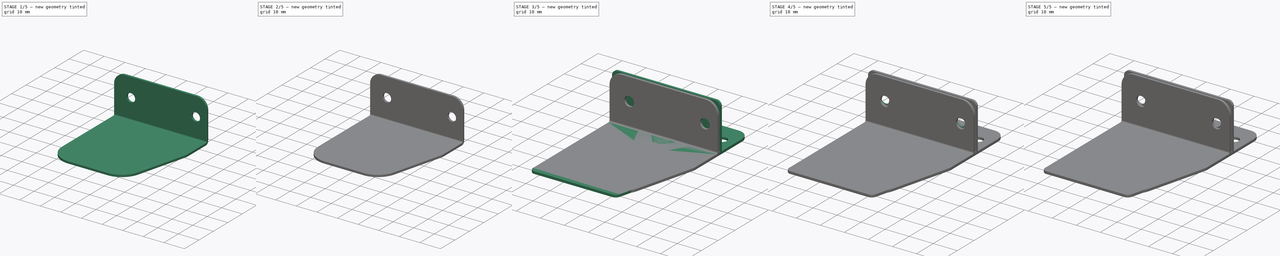
[diagram: build sequence overview — one tinted view per stage of 5, left to right]
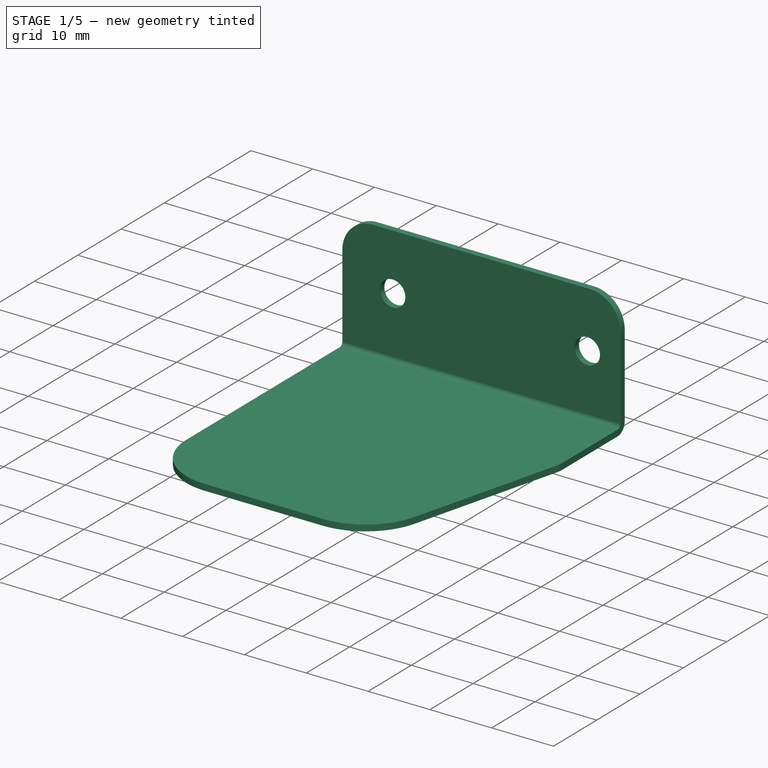
[diagram: stage 1 of 5 — iso view after this stage's code; geometry added in this stage tinted green]
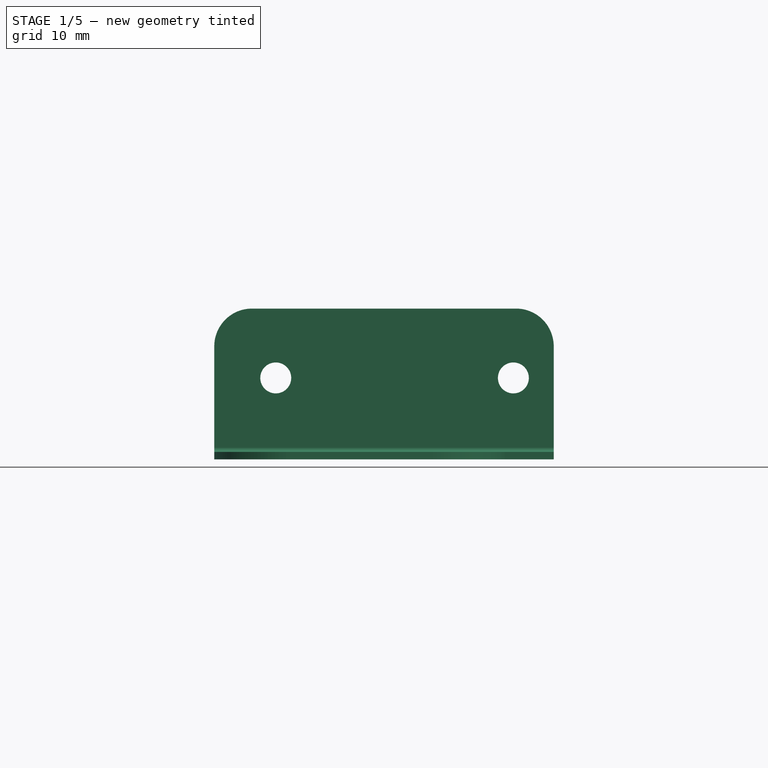
[diagram: stage 1 of 5 — front view after this stage's code; geometry added in this stage tinted green]
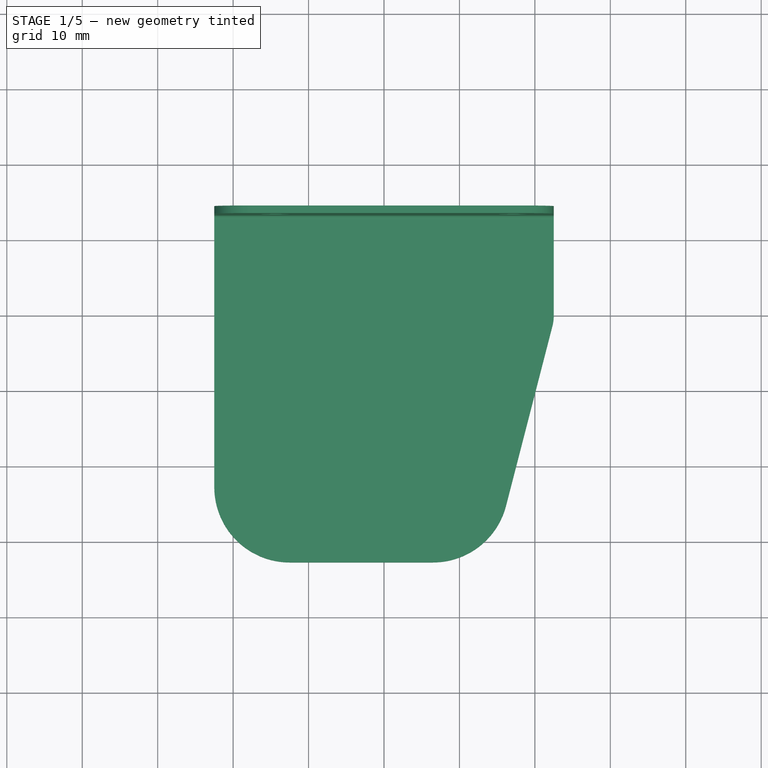
[diagram: stage 1 of 5 — top view after this stage's code; geometry added in this stage tinted green]
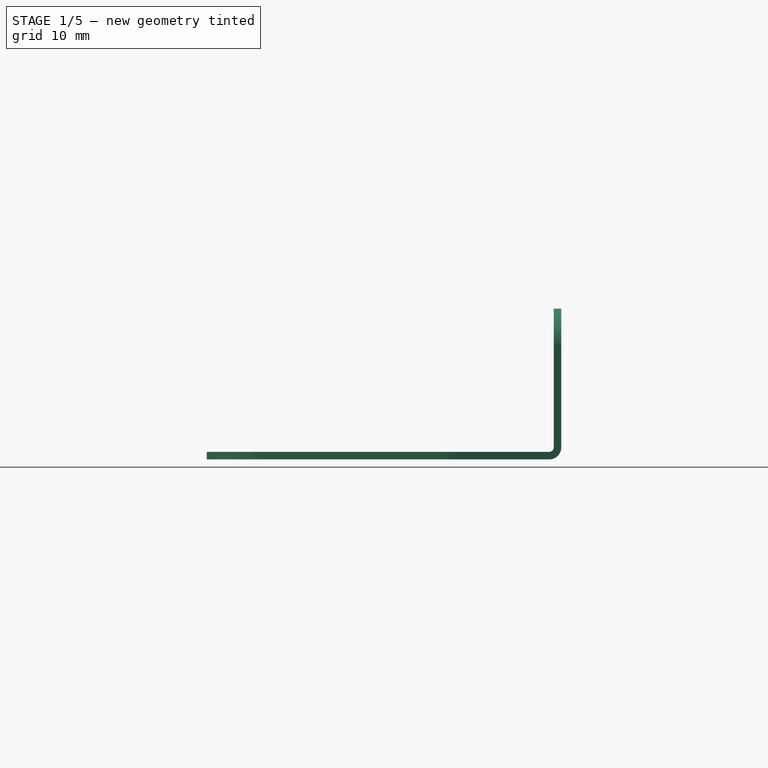
[diagram: stage 1 of 5 — right view after this stage's code; geometry added in this stage tinted green]
FCSTD DOCUMENT  (FreeCAD 1.0R39285 (Git))
Label: TrailingEdgeBracket
License: All rights reserved
LicenseURL: https://en.wikipedia.org/wiki/All_rights_reserved
objects: Sketcher::SketchObject×12, PartDesign::Pocket×9, PartDesign::Fillet×7, PartDesign::FeaturePython×5, PartDesign::Chamfer×5, PartDesign::Body×5, Part::FeaturePython×1
note: 103 computed .brp shape members not serialized (recipe doc carries the construction recipe); baked Part::Feature solids carry a one-line shape summary decoded from their .brp

FEATURE [Sketcher::SketchObject] Unfold_Sketch
  ArcFitTolerance = 1e-06
  FullyConstrained = false
  MakeInternals = false
  sketch-geometry (14):
    g0: LineSegment StartX=40 StartY=65.445 StartZ=0 EndX=5 EndY=65.445 EndZ=0
    g1: ArcOfCircle CenterX=5 CenterY=60.445 CenterZ=0 NormalX=0 NormalY=0 NormalZ=1 AngleXU=1.4e-15 Radius=5 StartAngle=0 EndAngle=1.5708
    g2: LineSegment StartX=2.2e-15 StartY=60.445 StartZ=0 EndX=0 EndY=47.055 EndZ=0
    g3: LineSegment StartX=0 StartY=47.055 StartZ=0 EndX=0 EndY=45.39 EndZ=0
    g4: LineSegment StartX=0 StartY=45.39 StartZ=0 EndX=0 EndY=10 EndZ=0
    g5: ArcOfCircle CenterX=10 CenterY=10 CenterZ=0 NormalX=0 NormalY=0 NormalZ=1 AngleXU=1.5708 Radius=10 StartAngle=0 EndAngle=1.5708
    g6: LineSegment StartX=10 StartY=0 StartZ=0 EndX=28.995 EndY=-1.8e-15 EndZ=0
    g7: ArcOfCircle CenterX=28.995 CenterY=10 CenterZ=0 NormalX=0 NormalY=0 NormalZ=1 AngleXU=-3.14159 Radius=10 StartAngle=0 EndAngle=1.31824
    g8: LineSegment StartX=38.6777 StartY=7.50122 StartZ=0 EndX=44.8414 EndY=31.3854 EndZ=0
    g9: ArcOfCircle CenterX=40 CenterY=32.6348 CenterZ=0 NormalX=0 NormalY=0 NormalZ=1 AngleXU=-1.82335 Radius=5 StartAngle=0 EndAngle=0.252554
    g10: LineSegment StartX=45 StartY=32.6348 StartZ=0 EndX=45 EndY=45.39 EndZ=0
    g11: LineSegment StartX=45 StartY=45.39 StartZ=0 EndX=45 EndY=47.055 EndZ=0
    g12: LineSegment StartX=45 StartY=47.055 StartZ=0 EndX=45 EndY=60.445 EndZ=0
    g13: ArcOfCircle CenterX=40 CenterY=60.445 CenterZ=0 NormalX=0 NormalY=0 NormalZ=1 AngleXU=-1.5708 Radius=5 StartAngle=0 EndAngle=1.5708
FEATURE [Sketcher::SketchObject] Unfold_Sketch_Bends
  ArcFitTolerance = 1e-06
  FullyConstrained = false
  MakeInternals = false
  sketch-geometry (1):
    g0: LineSegment StartX=45 StartY=46.2225 StartZ=0 EndX=0 EndY=46.2225 EndZ=0
FEATURE [Sketcher::SketchObject] Unfold_Sketch_Holes
  ArcFitTolerance = 1e-06
  FullyConstrained = false
  MakeInternals = false
  sketch-geometry (6):
    g0: Circle CenterX=22.5 CenterY=30.39 CenterZ=0 NormalX=0 NormalY=0 NormalZ=1 AngleXU=0 Radius=10.75
    g1: Circle CenterX=18.9254 CenterY=9.25009 CenterZ=0 NormalX=0 NormalY=0 NormalZ=1 AngleXU=0 Radius=5.555
    g2: Circle CenterX=33.1377 CenterY=14.0471 CenterZ=0 NormalX=0 NormalY=0 NormalZ=1 AngleXU=0 Radius=4.76
    g3: Circle CenterX=7.08044 CenterY=18.4532 CenterZ=0 NormalX=0 NormalY=0 NormalZ=1 AngleXU=0 Radius=4.76
    g4: Circle CenterX=8.15 CenterY=56.25 CenterZ=0 NormalX=0 NormalY=0 NormalZ=1 AngleXU=0 Radius=2.05
    g5: Circle CenterX=39.65 CenterY=56.25 CenterZ=0 NormalX=0 NormalY=0 NormalZ=1 AngleXU=0 Radius=2.05
FEATURE [PartDesign::FeaturePython] BaseShape004  # WARN: FeaturePython — macro-defined, semantics opaque (R4)
  Suppressed = false
  fillGaps = true
  flangeWidth = 20
  height = 20
  length = 45
  originLoc = 4
  radius = 0.61
  shapeType = 1
  thickness = 1
  width = 47
  expr: radius = 0.61
FEATURE [PartDesign::Chamfer] Chamfer004
  Angle = 45
  Base = -> BaseShape004 [Edge6]
  BaseFeature = -> BaseShape004
  ChamferType = 1
  FlipDirection = false
  Refine = true
  Size = 8.25806
  Size2 = 32
  SupportTransform = false
  Suppressed = false
  UseAllEdges = false
  expr: Size = Size2 / 15.5 * 4
  expr: Size2 = BaseShape004.width - 15 mm
FEATURE [PartDesign::Fillet] Fillet005
  Base = -> Chamfer004 [Edge26,Edge27,Edge9]
  BaseFeature = -> Chamfer004
  Radius = 5
  Refine = true
  SupportTransform = false
  Suppressed = false
  UseAllEdges = false
FEATURE [PartDesign::Fillet] Fillet006
  Base = -> Fillet005 [Edge25,Edge18]
  BaseFeature = -> Fillet005
  Radius = 10
  Refine = true
  SupportTransform = false
  Suppressed = false
  UseAllEdges = false
FEATURE [Sketcher::SketchObject] Sketch008
  ArcFitTolerance = 1e-06
  AttachmentSupport = -> [BaseShape004]
  ExternalGeometry = -> [BaseShape004]
  FullyConstrained = true
  MakeInternals = false
  MapMode = 5
  Placement = pos=(0,23.305,-2.6e-15) rot=(1,0,0;1.5708rad)
  sketch-geometry (6):
    g0: Circle CenterX=-14.35 CenterY=10.805 CenterZ=0 NormalX=0 NormalY=0 NormalZ=1 AngleXU=0 Radius=2.05
    g1: Circle CenterX=17.15 CenterY=10.805 CenterZ=0 NormalX=0 NormalY=0 NormalZ=1 AngleXU=0 Radius=2.05
    g2: GeomPoint [constr] X=-22.5 Y=10.805 Z=0
    g3: GeomPoint [constr] X=22.5 Y=10.805 Z=0
    g4: LineSegment [constr] StartX=-22.5 StartY=10.805 StartZ=0 EndX=22.5 EndY=10.805 EndZ=0
    g5: GeomPoint [constr] X=1.4 Y=10.805 Z=0
  constraints (11):
    c: DistanceX(g0,g1) = 31.5  'HoleSpacing'
    c: Diameter(g0) = 4.1
    c: Diameter(g1) = 4.1
    c: Symmetric(g-3,g-3,g2)
    c: Symmetric(g-4,g-4,g3)
    c: Coincident(g4,g2)
    c: Coincident(g4,g3)
    c: PointOnObject(g0,g4)
    c: PointOnObject(g5,g4)
    c: DistanceX(g-1,g5) = 1.4
    c: Symmetric(g0,g1,g5)
FEATURE [Sketcher::SketchObject] Sketch009
  ArcFitTolerance = 1e-06
  AttachmentSupport = -> [BaseShape004]
  ExternalGeometry = -> [BaseShape004]
  FullyConstrained = false
  MakeInternals = false
  MapMode = 5
  Placement = pos=(0,0,1) rot=(0,0,1;0rad)
  expr: Constraints[31] = Chamfer004.Size2
  expr: Constraints[32] = Chamfer004.Size
  sketch-geometry (24):
    g0: Circle CenterX=-1.7e-15 CenterY=7.695 CenterZ=0 NormalX=0 NormalY=0 NormalZ=1 AngleXU=0 Radius=10.75
    g1: Circle [constr] CenterX=-1.7e-15 CenterY=7.695 CenterZ=0 NormalX=0 NormalY=0 NormalZ=1 AngleXU=0 Radius=13.5
    g2: LineSegment [constr] StartX=-1.7e-15 StartY=7.695 StartZ=0 EndX=10.75 EndY=7.695 EndZ=0
    g3: LineSegment [constr] StartX=-1.7e-15 StartY=7.695 StartZ=0 EndX=-1.7e-15 EndY=-3.055 EndZ=0
    g4: Circle CenterX=10.6377 CenterY=-8.64789 CenterZ=0 NormalX=0 NormalY=0 NormalZ=1 AngleXU=0 Radius=4.76
    g5: Circle [constr] CenterX=10.6377 CenterY=-8.64789 CenterZ=0 NormalX=0 NormalY=0 NormalZ=1 AngleXU=0 Radius=6
    g6: Circle CenterX=-16.1913 CenterY=15.2448 CenterZ=0 NormalX=0 NormalY=0 NormalZ=1 AngleXU=0 Radius=3.175
    g7: Circle [constr] CenterX=-16.1913 CenterY=15.2448 CenterZ=0 NormalX=0 NormalY=0 NormalZ=1 AngleXU=0 Radius=4.365
    g8: Circle CenterX=-1.33027 CenterY=-11.7596 CenterZ=0 NormalX=0 NormalY=0 NormalZ=1 AngleXU=0 Radius=4.76
    g9: Circle [constr] CenterX=-1.33027 CenterY=-11.7596 CenterZ=0 NormalX=0 NormalY=0 NormalZ=1 AngleXU=0 Radius=6
    g10: Circle [constr] CenterX=-1.33027 CenterY=-11.7596 CenterZ=0 NormalX=0 NormalY=0 NormalZ=1 AngleXU=0 Radius=3.175
    g11: Circle [constr] CenterX=10.6377 CenterY=-8.64789 CenterZ=0 NormalX=0 NormalY=0 NormalZ=1 AngleXU=0 Radius=3.175
    g12: Circle [constr] CenterX=-16.1913 CenterY=15.2448 CenterZ=0 NormalX=0 NormalY=0 NormalZ=1 AngleXU=0 Radius=1.59
    g13: Circle [constr] CenterX=-1.7e-15 CenterY=7.695 CenterZ=0 NormalX=0 NormalY=0 NormalZ=1 AngleXU=0 Radius=6.35
    g14: LineSegment [constr] StartX=22.5 StartY=9.305 StartZ=0 EndX=14.2419 EndY=-22.695 EndZ=0
    g15: Circle CenterX=16.5058 CenterY=14.7045 CenterZ=0 NormalX=0 NormalY=0 NormalZ=1 AngleXU=0 Radius=3.175
    g16: Circle [constr] CenterX=16.5058 CenterY=14.7045 CenterZ=0 NormalX=0 NormalY=0 NormalZ=1 AngleXU=0 Radius=4.365
    g17: Circle [constr] CenterX=16.5058 CenterY=14.7045 CenterZ=0 NormalX=0 NormalY=0 NormalZ=1 AngleXU=0 Radius=1.59
    g18: Circle CenterX=-10.8542 CenterY=-6.84719 CenterZ=0 NormalX=0 NormalY=0 NormalZ=1 AngleXU=0 Radius=3.175
    g19: Circle [constr] CenterX=-10.8542 CenterY=-6.84719 CenterZ=0 NormalX=0 NormalY=0 NormalZ=1 AngleXU=0 Radius=4.365
    g20: Circle [constr] CenterX=-10.8542 CenterY=-6.84719 CenterZ=0 NormalX=0 NormalY=0 NormalZ=1 AngleXU=0 Radius=1.59
    g21: Circle CenterX=-16.3254 CenterY=0.141504 CenterZ=0 NormalX=0 NormalY=0 NormalZ=1 AngleXU=0 Radius=3.175
    g22: Circle [constr] CenterX=-16.3254 CenterY=0.141504 CenterZ=0 NormalX=0 NormalY=0 NormalZ=1 AngleXU=0 Radius=4.365
    g23: Circle [constr] CenterX=-16.3254 CenterY=0.141504 CenterZ=0 NormalX=0 NormalY=0 NormalZ=1 AngleXU=0 Radius=1.59
  constraints (51):
    c: Diameter(g0) = 21.5
    c: DistanceX(g-3,g0) = 22.5
    c: DistanceY(g0,g-3) = 15
    c: Diameter(g1) = 27
    c: Coincident(g1,g0)
    c: Coincident(g2,g0)
    c: PointOnObject(g2,g0)
    c: Horizontal(g2)
    c: Coincident(g3,g0)
    c: PointOnObject(g3,g0)
    c: Vertical(g3)
    c: Equal(g4,g8)
    c: Equal(g5,g9)
    c: Coincident(g5,g4)
    c: Coincident(g7,g6)
    c: Diameter(g6) = 6.35
    c: Diameter(g7) = 8.73
    c: Diameter(g10) = 6.35
    c: Diameter(g11) = 6.35
    c: Coincident(g11,g4)
    c: Diameter(g12) = 3.18
    c: Coincident(g12,g6)
    c: Diameter(g13) = 12.7
    c: Coincident(g13,g0)
    c: Tangent(g7,g1)
    c: Tangent(g5,g1)
    c: Tangent(g9,g1)
    c: Diameter(g9) = 12
    c: Diameter(g8) = 9.52
    c: PointOnObject(g14,g-4)
    c: PointOnObject(g14,g-5)
    c: DistanceY(g-5,g14) = 32
    c: DistanceX(g14,g-5) = 8.25806
    c: Distance(g4,g14) = 7
    c: Coincident(g16,g15)
    c: Diameter(g15) = 6.35
    c: Diameter(g16) = 8.73
    c: Diameter(g17) = 3.18
    c: Coincident(g17,g15)
    c: Coincident(g19,g18)
    c: Diameter(g18) = 6.35
    c: Diameter(g19) = 8.73
    c: Diameter(g20) = 3.18
    c: Coincident(g20,g18)
    c: Coincident(g9,g8)
    c: Coincident(g9,g10)
    c: Coincident(g22,g21)
    c: Diameter(g21) = 6.35
    c: Diameter(g22) = 8.73
    c: Diameter(g23) = 3.18
    c: Coincident(g23,g21)
FEATURE [PartDesign::Pocket] Pocket008
  BaseFeature = -> Fillet006
  Direction = (0,1,-2e-16)
  Length = 5
  Length2 = 5
  Profile = -> Sketch008
  ReferenceAxis = -> Sketch008 [N_Axis]
  Refine = true
  Suppressed = false
  Type = 1
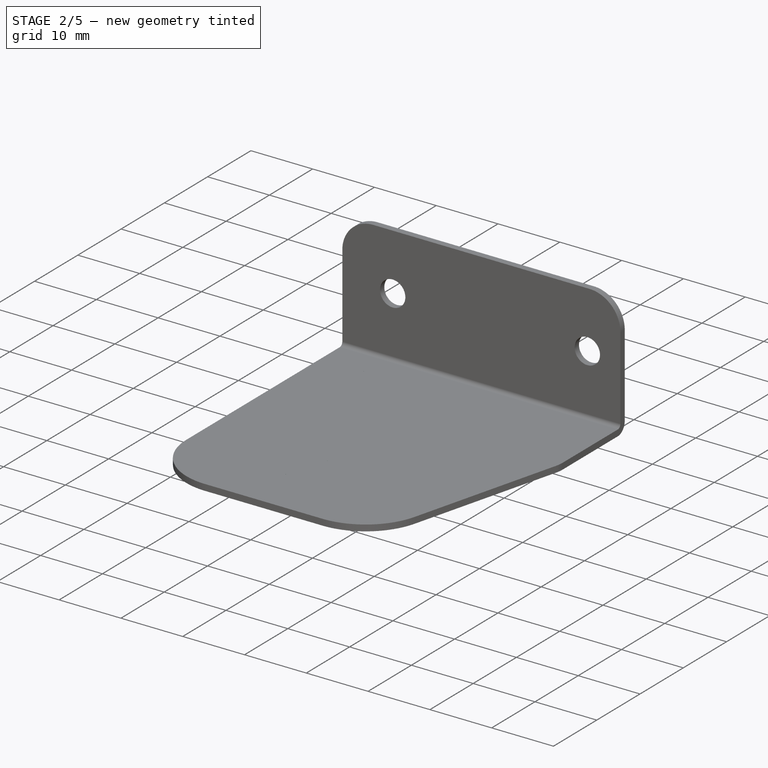
[diagram: stage 2 of 5 — iso view after this stage's code; geometry added in this stage tinted green]
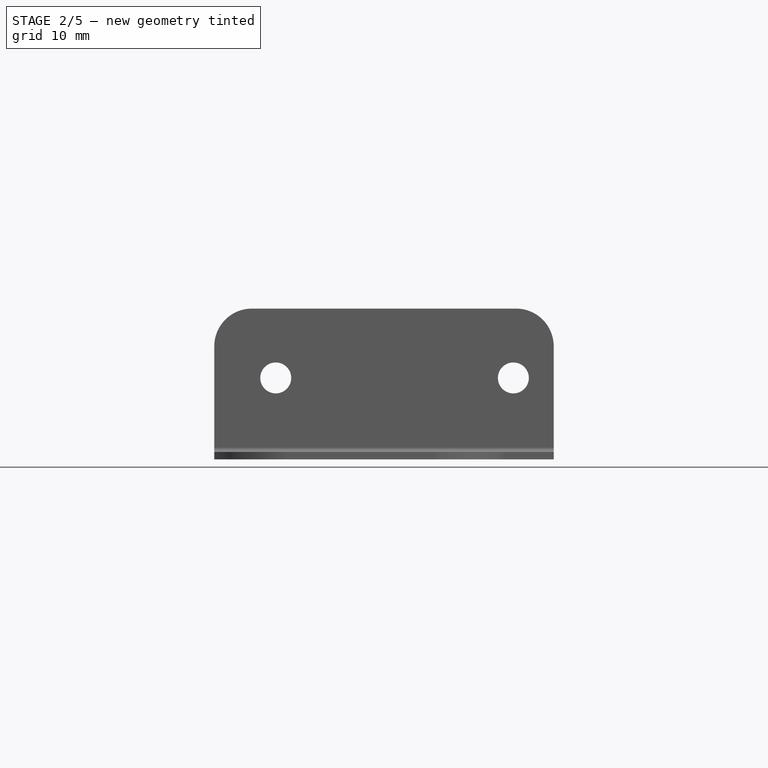
[diagram: stage 2 of 5 — front view after this stage's code; geometry added in this stage tinted green]
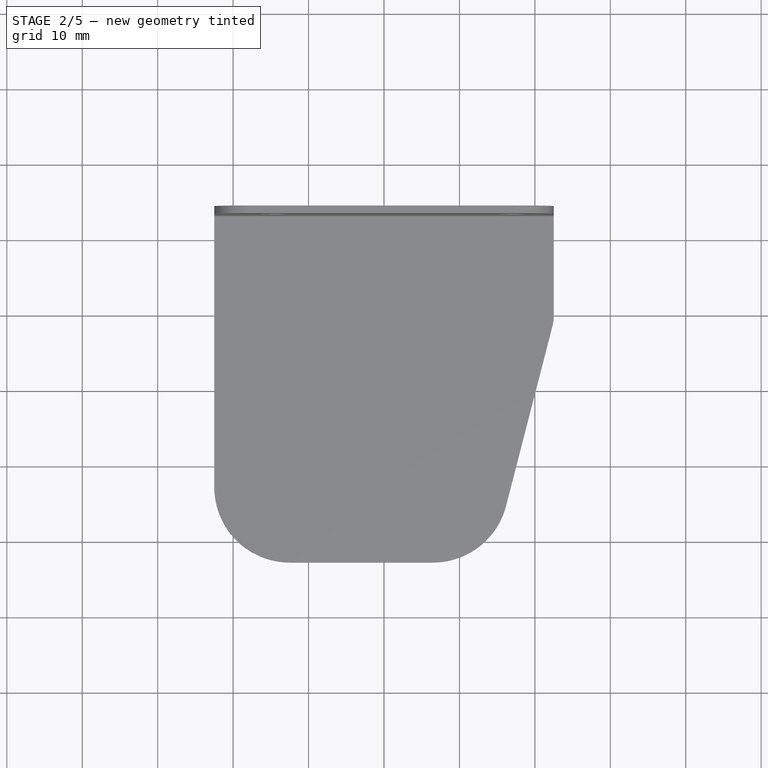
[diagram: stage 2 of 5 — top view after this stage's code; geometry added in this stage tinted green]
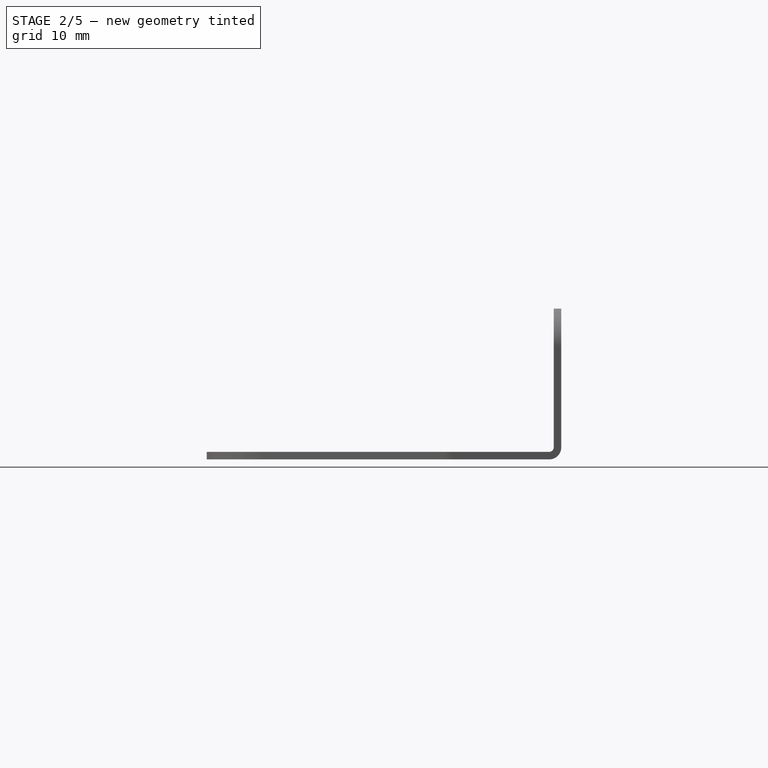
[diagram: stage 2 of 5 — right view after this stage's code; geometry added in this stage tinted green]
FEATURE [PartDesign::Body] Body002  label="SnapBushings"
  AllowCompound = false
  Group = -> [BaseShape002,Chamfer002,Fillet002,Sketch004,Sketch005,Pocket004,Pocket005]
  Origin = -> Origin002
  Tip = -> Pocket005
FEATURE [PartDesign::FeaturePython] BaseShape003  # WARN: FeaturePython — macro-defined, semantics opaque (R4)
  Suppressed = false
  fillGaps = true
  flangeWidth = 20
  height = 20
  length = 45
  originLoc = 4
  radius = 0.61
  shapeType = 1
  thickness = 1
  width = 47
  expr: radius = 0.61
FEATURE [PartDesign::Chamfer] Chamfer003
  Angle = 45
  Base = -> BaseShape003 [Edge6]
  BaseFeature = -> BaseShape003
  ChamferType = 1
  FlipDirection = false
  Refine = true
  Size = 8.25806
  Size2 = 32
  SupportTransform = false
  Suppressed = false
  UseAllEdges = false
  expr: Size = Size2 / 15.5 * 4
  expr: Size2 = BaseShape003.width - 15 mm
FEATURE [PartDesign::Fillet] Fillet003
  Base = -> Chamfer003 [Edge26,Edge27,Edge9]
  BaseFeature = -> Chamfer003
  Radius = 5
  Refine = true
  SupportTransform = false
  Suppressed = false
  UseAllEdges = false
FEATURE [Sketcher::SketchObject] Sketch006
  ArcFitTolerance = 1e-06
  AttachmentSupport = -> [BaseShape003]
  ExternalGeometry = -> [BaseShape003]
  FullyConstrained = true
  MakeInternals = false
  MapMode = 5
  Placement = pos=(0,23.305,0) rot=(1,0,0;1.5708rad)
  sketch-geometry (6):
    g0: Circle CenterX=-14.35 CenterY=10.805 CenterZ=0 NormalX=0 NormalY=0 NormalZ=1 AngleXU=0 Radius=2.05
    g1: Circle CenterX=17.15 CenterY=10.805 CenterZ=0 NormalX=0 NormalY=0 NormalZ=1 AngleXU=0 Radius=2.05
    g2: GeomPoint [constr] X=-22.5 Y=10.805 Z=0
    g3: GeomPoint [constr] X=22.5 Y=10.805 Z=0
    g4: LineSegment [constr] StartX=-22.5 StartY=10.805 StartZ=0 EndX=22.5 EndY=10.805 EndZ=0
    g5: GeomPoint [constr] X=1.4 Y=10.805 Z=0
  constraints (11):
    c: DistanceX(g0,g1) = 31.5  'HoleSpacing'
    c: Diameter(g0) = 4.1
    c: Diameter(g1) = 4.1
    c: Symmetric(g-3,g-3,g2)
    c: Symmetric(g-4,g-4,g3)
    c: Coincident(g4,g2)
    c: Coincident(g4,g3)
    c: PointOnObject(g0,g4)
    c: PointOnObject(g5,g4)
    c: DistanceX(g-1,g5) = 1.4
    c: Symmetric(g0,g1,g5)
FEATURE [Sketcher::SketchObject] Sketch007
  ArcFitTolerance = 1e-06
  AttachmentSupport = -> [BaseShape003]
  ExternalGeometry = -> [BaseShape003]
  FullyConstrained = true
  MakeInternals = false
  MapMode = 5
  Placement = pos=(0,0,1) rot=(0,0,1;0rad)
  expr: Constraints[33] = Chamfer003.Size2
  expr: Constraints[34] = Chamfer003.Size
  sketch-geometry (15):
    g0: Circle CenterX=5e-16 CenterY=7.695 CenterZ=0 NormalX=0 NormalY=0 NormalZ=1 AngleXU=0 Radius=10.75
    g1: Circle [constr] CenterX=5e-16 CenterY=7.695 CenterZ=0 NormalX=0 NormalY=0 NormalZ=1 AngleXU=0 Radius=13.5
    g2: LineSegment [constr] StartX=5e-16 StartY=7.695 StartZ=0 EndX=10.75 EndY=7.695 EndZ=0
    g3: LineSegment [constr] StartX=5e-16 StartY=7.695 StartZ=0 EndX=5e-16 EndY=-3.055 EndZ=0
    g4: Circle CenterX=10.6377 CenterY=-8.64789 CenterZ=0 NormalX=0 NormalY=0 NormalZ=1 AngleXU=0 Radius=4.76
    g5: Circle [constr] CenterX=10.6377 CenterY=-8.64789 CenterZ=0 NormalX=0 NormalY=0 NormalZ=1 AngleXU=0 Radius=6
    g6: Circle CenterX=-3.57461 CenterY=-13.4449 CenterZ=0 NormalX=0 NormalY=0 NormalZ=1 AngleXU=0 Radius=5.555
    g7: Circle [constr] CenterX=-3.57461 CenterY=-13.4449 CenterZ=0 NormalX=0 NormalY=0 NormalZ=1 AngleXU=0 Radius=7.94
    g8: Circle CenterX=-15.4196 CenterY=-4.2418 CenterZ=0 NormalX=0 NormalY=0 NormalZ=1 AngleXU=0 Radius=4.76
    g9: Circle [constr] CenterX=-15.4196 CenterY=-4.2418 CenterZ=0 NormalX=0 NormalY=0 NormalZ=1 AngleXU=0 Radius=6
    g10: Circle [constr] CenterX=-15.4196 CenterY=-4.2418 CenterZ=0 NormalX=0 NormalY=0 NormalZ=1 AngleXU=0 Radius=3.175
    g11: Circle [constr] CenterX=10.6377 CenterY=-8.64789 CenterZ=0 NormalX=0 NormalY=0 NormalZ=1 AngleXU=0 Radius=3.175
    g12: Circle [constr] CenterX=-3.57461 CenterY=-13.4449 CenterZ=0 NormalX=0 NormalY=0 NormalZ=1 AngleXU=0 Radius=3.175
    g13: Circle [constr] CenterX=5e-16 CenterY=7.695 CenterZ=0 NormalX=0 NormalY=0 NormalZ=1 AngleXU=0 Radius=6.35
    g14: LineSegment [constr] StartX=22.5 StartY=9.305 StartZ=0 EndX=14.2419 EndY=-22.695 EndZ=0
  constraints (38):
    c: Diameter(g0) = 21.5
    c: DistanceX(g-3,g0) = 22.5
    c: DistanceY(g0,g-3) = 15
    c: Diameter(g1) = 27
    c: Coincident(g1,g0)
    c: Coincident(g2,g0)
    c: PointOnObject(g2,g0)
    c: Horizontal(g2)
    c: Coincident(g3,g0)
    c: PointOnObject(g3,g0)
    c: Vertical(g3)
    c: Equal(g4,g8)
    c: Equal(g5,g9)
    c: Coincident(g5,g4)
    c: Coincident(g7,g6)
    c: Coincident(g8,g9)
    c: Diameter(g6) = 11.11
    c: Diameter(g7) = 15.88
    c: Diameter(g10) = 6.35
    c: Coincident(g10,g8)
    c: Diameter(g11) = 6.35
    c: Coincident(g11,g4)
    c: Diameter(g12) = 6.35
    c: Coincident(g12,g6)
    c: Diameter(g13) = 12.7
    c: Coincident(g13,g0)
    c: Tangent(g7,g1)
    c: Tangent(g5,g1)
    c: Tangent(g9,g1)
    c: Diameter(g9) = 12
    c: Diameter(g8) = 9.52
    c: PointOnObject(g14,g-4)
    c: PointOnObject(g14,g-5)
    c: DistanceY(g-5,g14) = 32
    c: DistanceX(g14,g-5) = 8.25806
    c: Distance(g8,g6) = 15
    c: Distance(g4,g6) = 15
    c: Distance(g4,g14) = 7
FEATURE [PartDesign::Fillet] Fillet004
  Base = -> Fillet003 [Edge25,Edge18]
  BaseFeature = -> Fillet003
  Radius = 10
  Refine = true
  SupportTransform = false
  Suppressed = false
  UseAllEdges = false
FEATURE [PartDesign::Pocket] Pocket006
  BaseFeature = -> Fillet004
  Direction = (0,1,-2e-16)
  Length = 5
  Length2 = 5
  Profile = -> Sketch006
  ReferenceAxis = -> Sketch006 [N_Axis]
  Refine = true
  Suppressed = false
  Type = 1
FEATURE [PartDesign::Pocket] Pocket009
  BaseFeature = -> Pocket008
  Direction = (0,0,-1)
  Length = 5
  Length2 = 5
  Profile = -> Sketch009
  ReferenceAxis = -> Sketch009 [N_Axis]
  Refine = true
  Suppressed = false
  Type = 1
FEATURE [PartDesign::Body] Body004  label="Body2Bushings3Grommets"
  AllowCompound = false
  Group = -> [BaseShape004,Chamfer004,Fillet005,Fillet006,Sketch008,Sketch009,Pocket008,Pocket009]
  Origin = -> Origin004
  Tip = -> Pocket009
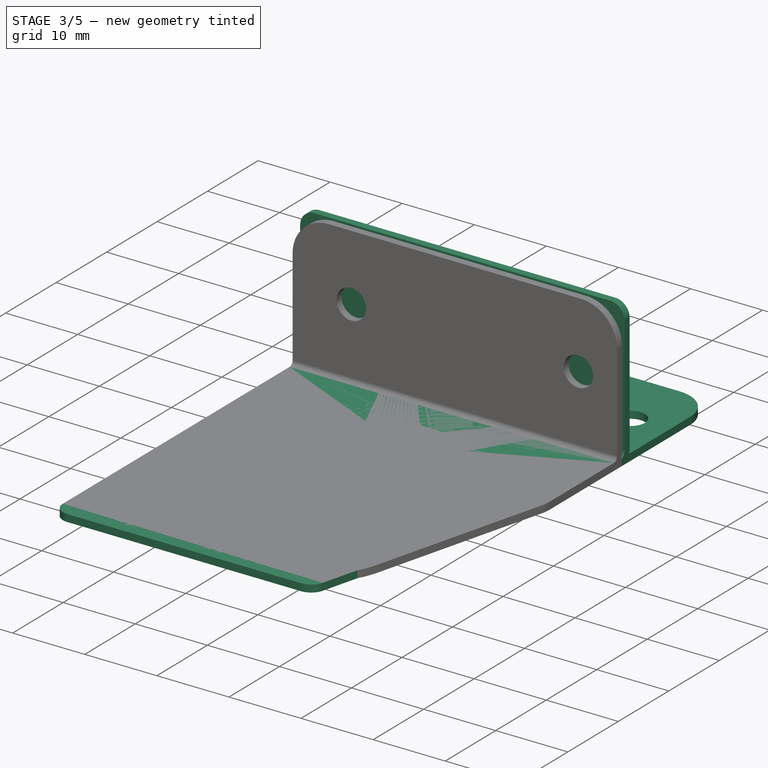
[diagram: stage 3 of 5 — iso view after this stage's code; geometry added in this stage tinted green]
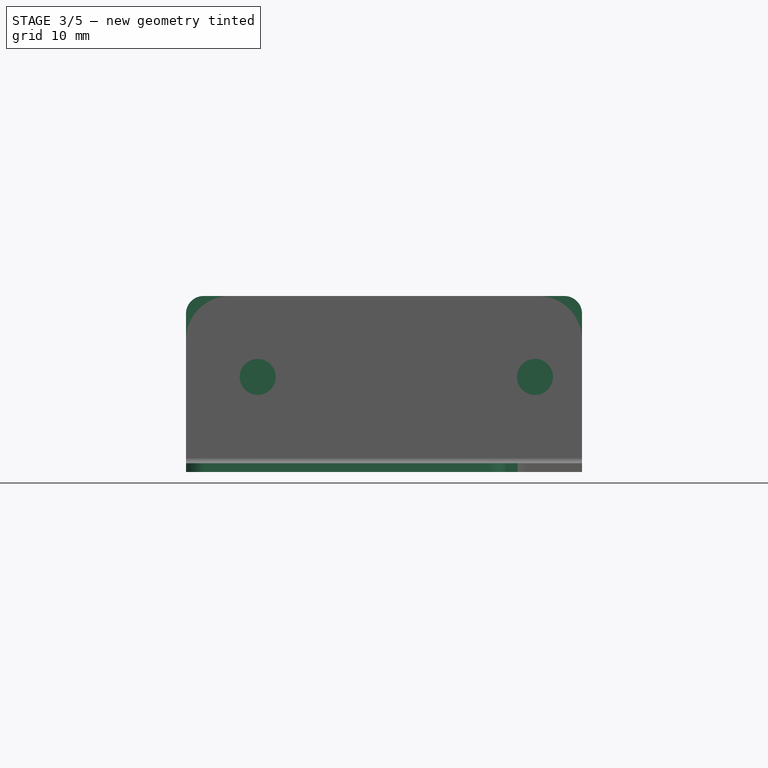
[diagram: stage 3 of 5 — front view after this stage's code; geometry added in this stage tinted green]
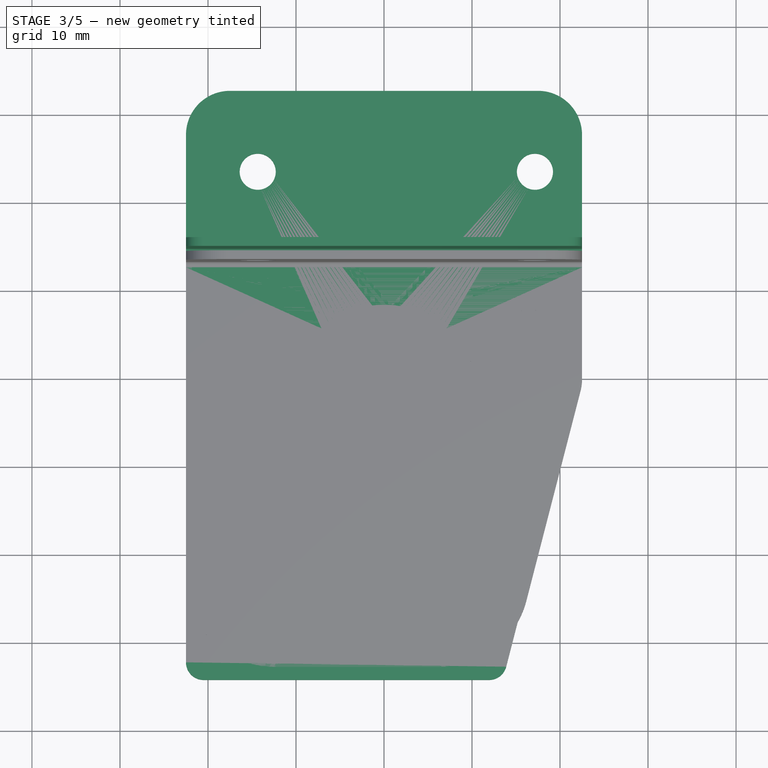
[diagram: stage 3 of 5 — top view after this stage's code; geometry added in this stage tinted green]
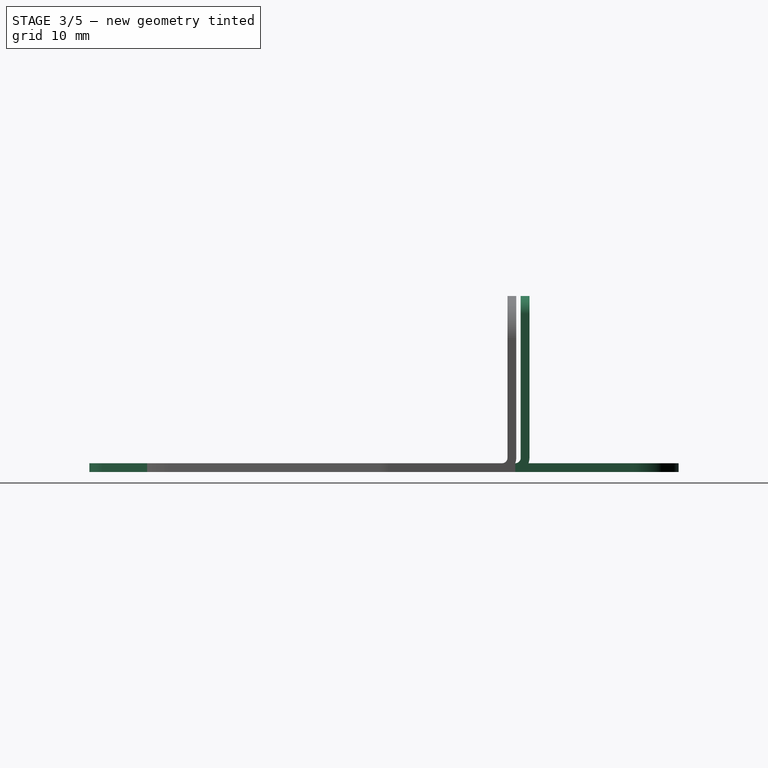
[diagram: stage 3 of 5 — right view after this stage's code; geometry added in this stage tinted green]
FEATURE [PartDesign::Body] Body001  label="Grommets"
  AllowCompound = false
  Group = -> [BaseShape001,Chamfer001,Fillet001,Sketch002,Sketch003,Pocket002,Pocket003]
  Origin = -> Origin001
  Tip = -> Pocket003
FEATURE [PartDesign::FeaturePython] BaseShape002  # WARN: FeaturePython — macro-defined, semantics opaque (R4)
  Suppressed = false
  fillGaps = true
  flangeWidth = 20
  height = 20
  length = 45
  originLoc = 4
  radius = 0.61
  shapeType = 1
  thickness = 1
  width = 50
  expr: radius = 0.61
FEATURE [PartDesign::Chamfer] Chamfer002
  Angle = 45
  Base = -> BaseShape002 [Edge6]
  BaseFeature = -> BaseShape002
  ChamferType = 1
  FlipDirection = false
  Refine = true
  Size = 9
  Size2 = 35
  SupportTransform = false
  Suppressed = false
  UseAllEdges = false
FEATURE [PartDesign::Fillet] Fillet002
  Base = -> Chamfer002 [Edge3,Edge2,Edge26,Edge27,Edge9]
  BaseFeature = -> Chamfer002
  Radius = 2
  Refine = true
  SupportTransform = false
  Suppressed = false
  UseAllEdges = false
FEATURE [PartDesign::Pocket] Pocket007
  BaseFeature = -> Pocket006
  Direction = (0,0,-1)
  Length = 5
  Length2 = 5
  Profile = -> Sketch007
  ReferenceAxis = -> Sketch007 [N_Axis]
  Refine = true
  Suppressed = false
  Type = 1
FEATURE [PartDesign::Body] Body003  label="BushingsGrommets"
  AllowCompound = false
  Group = -> [BaseShape003,Chamfer003,Fillet003,Fillet004,Sketch006,Sketch007,Pocket006,Pocket007]
  Origin = -> Origin003
  Tip = -> Pocket007
FEATURE [Part::FeaturePython] BodyBushingsGrommets_Unfold  label="BushingsGrommets_Unfold"  # WARN: FeaturePython — macro-defined, semantics opaque (R4)
  GenerateSketch = true
  KFactor = 0.45
  KFactorStandard = 0
  ManualRecompute = false
  MaterialSheet = _manual
  SeparateSketchLayers = true
  UnfoldSketches = Unfold_Sketch | Unfold_Sketch_Bends | Unfold_Sketch_Holes
  baseObject = -> Body003 [Pocket007.Face14]
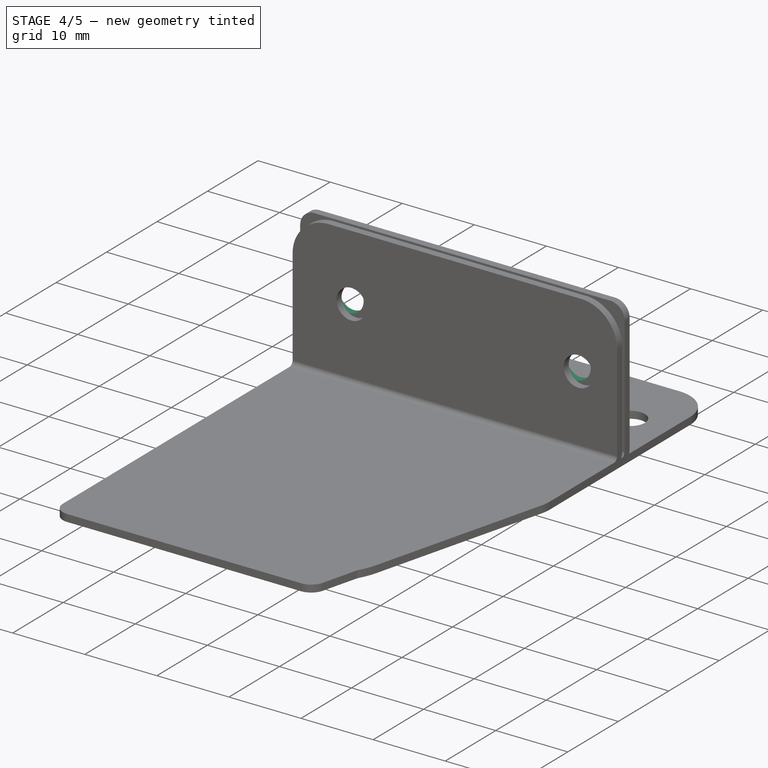
[diagram: stage 4 of 5 — iso view after this stage's code; geometry added in this stage tinted green]
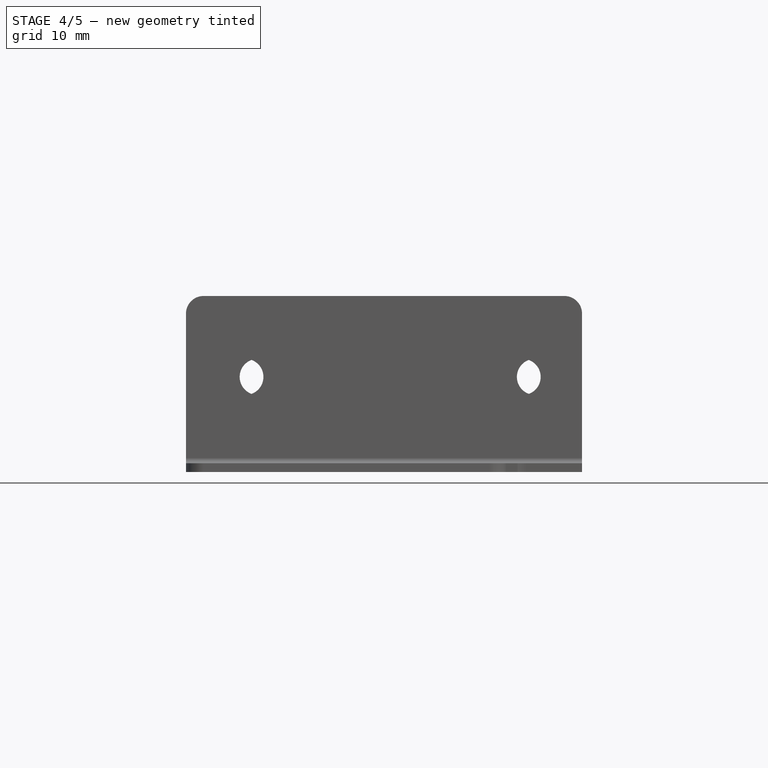
[diagram: stage 4 of 5 — front view after this stage's code; geometry added in this stage tinted green]
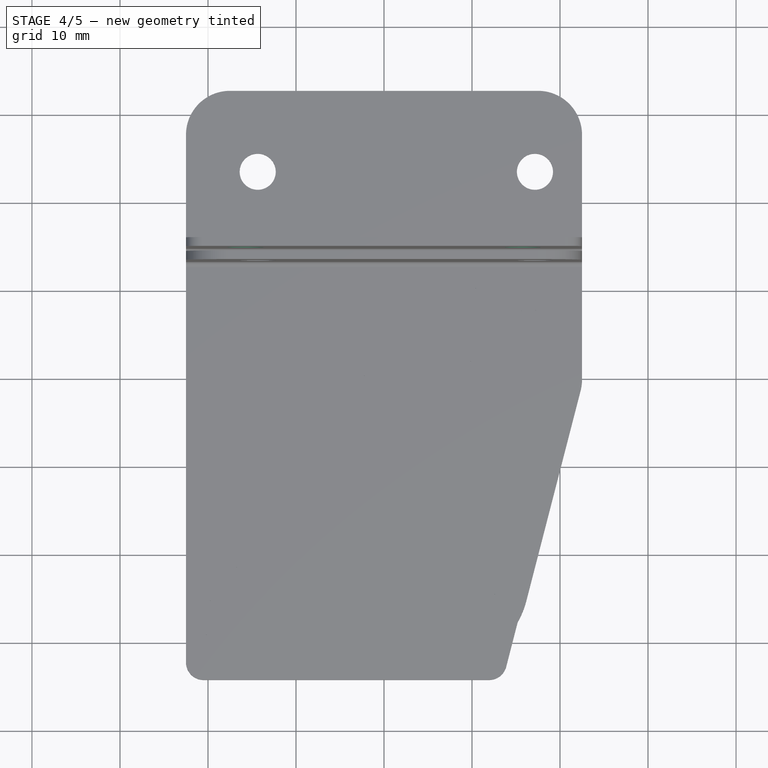
[diagram: stage 4 of 5 — top view after this stage's code; geometry added in this stage tinted green]
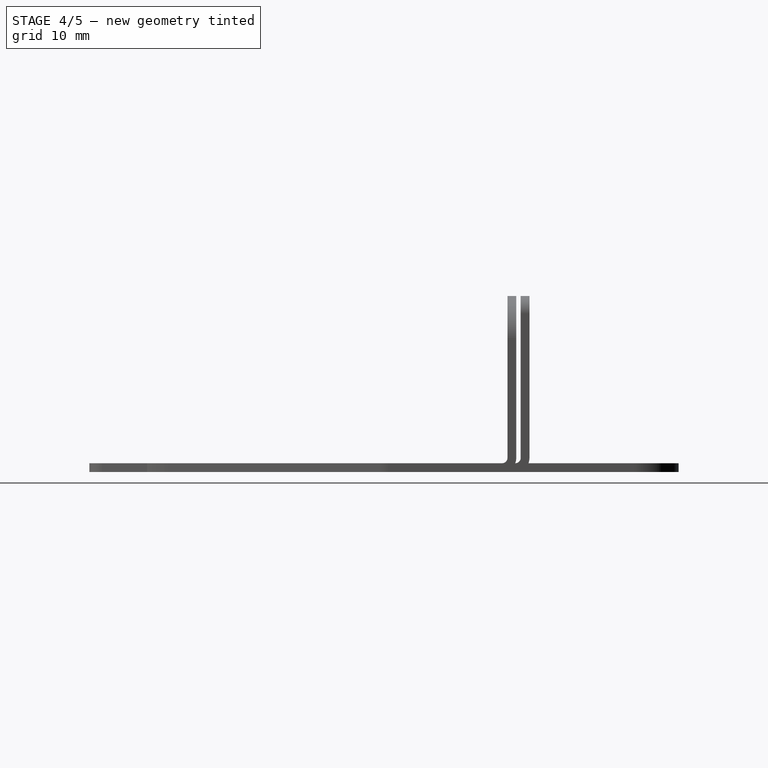
[diagram: stage 4 of 5 — right view after this stage's code; geometry added in this stage tinted green]
FEATURE [PartDesign::Body] Body
  AllowCompound = false
  Group = -> [BaseShape,Chamfer,Fillet,Sketch,Pocket]
  Origin = -> Origin
  Tip = -> Pocket
FEATURE [PartDesign::FeaturePython] BaseShape001  # WARN: FeaturePython — macro-defined, semantics opaque (R4)
  Suppressed = false
  fillGaps = true
  flangeWidth = 20
  height = 20
  length = 45
  originLoc = 4
  radius = 0.61
  shapeType = 1
  thickness = 1
  width = 50
  expr: radius = 0.61
FEATURE [PartDesign::Chamfer] Chamfer001
  Angle = 45
  Base = -> BaseShape001 [Edge6]
  BaseFeature = -> BaseShape001
  ChamferType = 1
  FlipDirection = false
  Refine = true
  Size = 9
  Size2 = 35
  SupportTransform = false
  Suppressed = false
  UseAllEdges = false
FEATURE [PartDesign::Fillet] Fillet001
  Base = -> Chamfer001 [Edge3,Edge2,Edge26,Edge27,Edge9]
  BaseFeature = -> Chamfer001
  Radius = 2
  Refine = true
  SupportTransform = false
  Suppressed = false
  UseAllEdges = false
FEATURE [Sketcher::SketchObject] Sketch002
  ArcFitTolerance = 1e-06
  AttachmentSupport = -> [BaseShape001]
  ExternalGeometry = -> [BaseShape001]
  FullyConstrained = true
  MakeInternals = false
  MapMode = 5
  Placement = pos=(0,24.805,0) rot=(1,0,0;1.5708rad)
  sketch-geometry (5):
    g0: Circle CenterX=-15.75 CenterY=10.805 CenterZ=0 NormalX=0 NormalY=0 NormalZ=1 AngleXU=0 Radius=2.05
    g1: Circle CenterX=15.75 CenterY=10.805 CenterZ=0 NormalX=0 NormalY=0 NormalZ=1 AngleXU=0 Radius=2.05
    g2: GeomPoint [constr] X=-22.5 Y=10.805 Z=0
    g3: GeomPoint [constr] X=22.5 Y=10.805 Z=0
    g4: LineSegment [constr] StartX=-22.5 StartY=10.805 StartZ=0 EndX=22.5 EndY=10.805 EndZ=0
  constraints (9):
    c: DistanceX(g0,g1) = 31.5  'HoleSpacing'
    c: Diameter(g0) = 4.1
    c: Diameter(g1) = 4.1
    c: Symmetric(g0,g1,g-2)
    c: Symmetric(g-3,g-3,g2)
    c: Symmetric(g-4,g-4,g3)
    c: Coincident(g4,g2)
    c: Coincident(g4,g3)
    c: PointOnObject(g0,g4)
FEATURE [PartDesign::Pocket] Pocket002
  BaseFeature = -> Fillet001
  Direction = (0,1,-2e-16)
  Length = 5
  Length2 = 5
  Profile = -> Sketch002
  ReferenceAxis = -> Sketch002 [N_Axis]
  Refine = true
  Suppressed = false
  Type = 1
FEATURE [Sketcher::SketchObject] Sketch004
  ArcFitTolerance = 1e-06
  AttachmentSupport = -> [BaseShape002]
  ExternalGeometry = -> [BaseShape002]
  FullyConstrained = true
  MakeInternals = false
  MapMode = 5
  Placement = pos=(0,24.805,0) rot=(1,0,0;1.5708rad)
  sketch-geometry (5):
    g0: Circle CenterX=-15.75 CenterY=10.805 CenterZ=0 NormalX=0 NormalY=0 NormalZ=1 AngleXU=0 Radius=2.05
    g1: Circle CenterX=15.75 CenterY=10.805 CenterZ=0 NormalX=0 NormalY=0 NormalZ=1 AngleXU=0 Radius=2.05
    g2: GeomPoint [constr] X=-22.5 Y=10.805 Z=0
    g3: GeomPoint [constr] X=22.5 Y=10.805 Z=0
    g4: LineSegment [constr] StartX=-22.5 StartY=10.805 StartZ=0 EndX=22.5 EndY=10.805 EndZ=0
  constraints (9):
    c: DistanceX(g0,g1) = 31.5  'HoleSpacing'
    c: Diameter(g0) = 4.1
    c: Diameter(g1) = 4.1
    c: Symmetric(g0,g1,g-2)
    c: Symmetric(g-3,g-3,g2)
    c: Symmetric(g-4,g-4,g3)
    c: Coincident(g4,g2)
    c: Coincident(g4,g3)
    c: PointOnObject(g0,g4)
FEATURE [PartDesign::Pocket] Pocket004
  BaseFeature = -> Fillet002
  Direction = (0,1,-2e-16)
  Length = 5
  Length2 = 5
  Profile = -> Sketch004
  ReferenceAxis = -> Sketch004 [N_Axis]
  Refine = true
  Suppressed = false
  Type = 1
FEATURE [Sketcher::SketchObject] Sketch005
  ArcFitTolerance = 1e-06
  AttachmentSupport = -> [BaseShape002]
  ExternalGeometry = -> [BaseShape002]
  FullyConstrained = true
  MakeInternals = false
  MapMode = 5
  Placement = pos=(0,0,1) rot=(0,0,1;0rad)
  sketch-geometry (12):
    g0: Circle CenterX=-15 CenterY=16.195 CenterZ=0 NormalX=0 NormalY=0 NormalZ=1 AngleXU=0 Radius=4.76
    g1: Circle CenterX=-3.5 CenterY=0.195 CenterZ=0 NormalX=0 NormalY=0 NormalZ=1 AngleXU=0 Radius=10.25
    g2: Circle [constr] CenterX=-3.5 CenterY=0.195 CenterZ=0 NormalX=0 NormalY=0 NormalZ=1 AngleXU=0 Radius=13.5
    g3: Circle [constr] CenterX=-15 CenterY=16.195 CenterZ=0 NormalX=0 NormalY=0 NormalZ=1 AngleXU=0 Radius=5.95
    g4: LineSegment [constr] StartX=-3.5 StartY=0.195 StartZ=0 EndX=6.75 EndY=0.195 EndZ=0
    g5: LineSegment [constr] StartX=-3.5 StartY=0.195 StartZ=0 EndX=-3.5 EndY=-10.055 EndZ=0
    g6: Circle CenterX=8 CenterY=16.195 CenterZ=0 NormalX=0 NormalY=0 NormalZ=1 AngleXU=0 Radius=4.76
    g7: Circle [constr] CenterX=8 CenterY=16.195 CenterZ=0 NormalX=0 NormalY=0 NormalZ=1 AngleXU=0 Radius=5.95
    g8: Circle CenterX=-15 CenterY=-15.805 CenterZ=0 NormalX=0 NormalY=0 NormalZ=1 AngleXU=0 Radius=4.76
    g9: Circle [constr] CenterX=-15 CenterY=-15.805 CenterZ=0 NormalX=0 NormalY=0 NormalZ=1 AngleXU=0 Radius=5.95
    g10: Circle CenterX=8 CenterY=-15.805 CenterZ=0 NormalX=0 NormalY=0 NormalZ=1 AngleXU=0 Radius=4.76
    g11: Circle [constr] CenterX=8 CenterY=-15.805 CenterZ=0 NormalX=0 NormalY=0 NormalZ=1 AngleXU=0 Radius=5.95
  constraints (28):
    c: Diameter(g0) = 9.52
    c: DistanceX(g-3,g0) = 7.5
    c: DistanceY(g0,g-3) = 8
    c: Diameter(g1) = 20.5
    c: DistanceX(g-3,g1) = 19
    c: DistanceY(g1,g-3) = 24
    c: Diameter(g2) = 27
    c: Coincident(g2,g1)
    c: Diameter(g3) = 11.9
    c: Coincident(g0,g3)
    c: Coincident(g4,g1)
    c: PointOnObject(g4,g1)
    c: Horizontal(g4)
    c: Coincident(g5,g1)
    c: PointOnObject(g5,g1)
    c: Vertical(g5)
    c: Equal(g0,g6)
    c: Symmetric(g0,g6,g5)
    c: Equal(g3,g7)
    c: Symmetric(g3,g7,g5)
    c: Equal(g0,g8)
    c: Symmetric(g0,g8,g4)
    c: Equal(g3,g9)
    c: Symmetric(g3,g9,g4)
    c: Equal(g6,g10)
    c: Symmetric(g6,g10,g4)
    c: Equal(g7,g11)
    c: Symmetric(g7,g11,g4)
FEATURE [PartDesign::Pocket] Pocket005
  BaseFeature = -> Pocket004
  Direction = (0,0,-1)
  Length = 5
  Length2 = 5
  Profile = -> Sketch005
  ReferenceAxis = -> Sketch005 [N_Axis]
  Refine = true
  Suppressed = false
  Type = 1
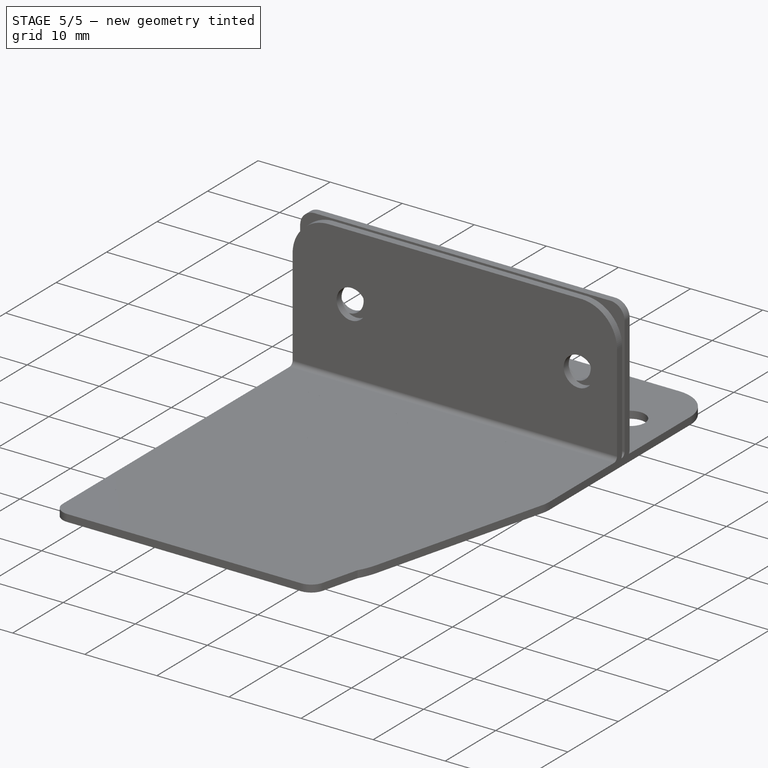
[diagram: stage 5 of 5 — iso view after this stage's code; geometry added in this stage tinted green]
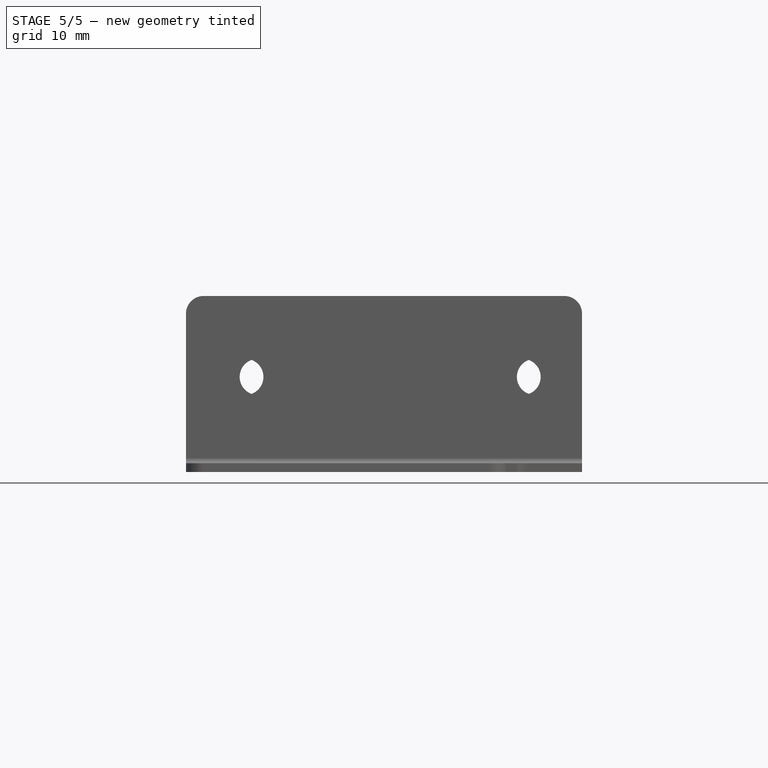
[diagram: stage 5 of 5 — front view after this stage's code; geometry added in this stage tinted green]
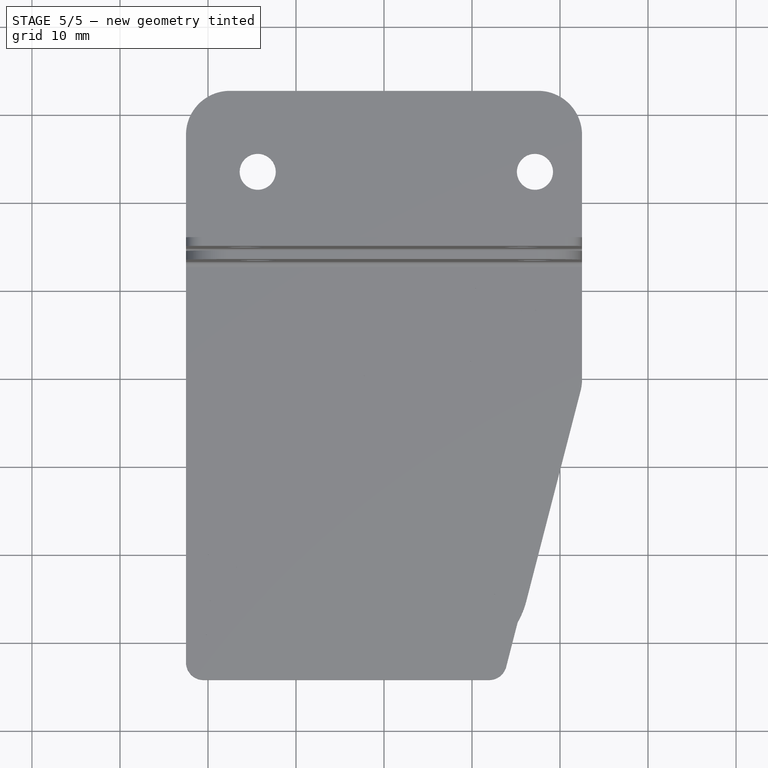
[diagram: stage 5 of 5 — top view after this stage's code; geometry added in this stage tinted green]
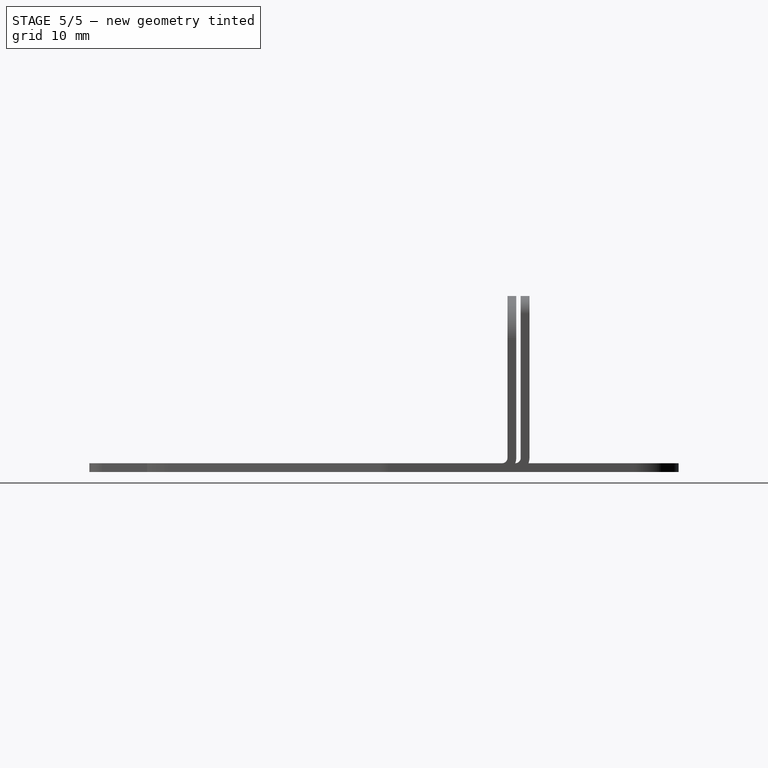
[diagram: stage 5 of 5 — right view after this stage's code; geometry added in this stage tinted green]
FEATURE [PartDesign::FeaturePython] BaseShape  # WARN: FeaturePython — macro-defined, semantics opaque (R4)
  Suppressed = false
  fillGaps = true
  flangeWidth = 20
  height = 20
  length = 45
  originLoc = 4
  radius = 0.61
  shapeType = 1
  thickness = 1
  width = 50
  expr: radius = 0.61
FEATURE [Sketcher::SketchObject] Sketch
  ArcFitTolerance = 1e-06
  AttachmentSupport = -> [BaseShape]
  ExternalGeometry = -> [BaseShape]
  FullyConstrained = true
  MakeInternals = false
  MapMode = 5
  Placement = pos=(0,24.805,0) rot=(1,0,0;1.5708rad)
  sketch-geometry (5):
    g0: Circle CenterX=-15.75 CenterY=10.805 CenterZ=0 NormalX=0 NormalY=0 NormalZ=1 AngleXU=0 Radius=2.05
    g1: Circle CenterX=15.75 CenterY=10.805 CenterZ=0 NormalX=0 NormalY=0 NormalZ=1 AngleXU=0 Radius=2.05
    g2: GeomPoint [constr] X=-22.5 Y=10.805 Z=0
    g3: GeomPoint [constr] X=22.5 Y=10.805 Z=0
    g4: LineSegment [constr] StartX=-22.5 StartY=10.805 StartZ=0 EndX=22.5 EndY=10.805 EndZ=0
  constraints (9):
    c: DistanceX(g0,g1) = 31.5  'HoleSpacing'
    c: Diameter(g0) = 4.1
    c: Diameter(g1) = 4.1
    c: Symmetric(g0,g1,g-2)
    c: Symmetric(g-3,g-3,g2)
    c: Symmetric(g-4,g-4,g3)
    c: Coincident(g4,g2)
    c: Coincident(g4,g3)
    c: PointOnObject(g0,g4)
FEATURE [PartDesign::Chamfer] Chamfer
  Angle = 45
  Base = -> BaseShape [Edge6]
  BaseFeature = -> BaseShape
  ChamferType = 1
  FlipDirection = false
  Refine = true
  Size = 9
  Size2 = 35
  SupportTransform = false
  Suppressed = false
  UseAllEdges = false
FEATURE [PartDesign::Fillet] Fillet
  Base = -> Chamfer [Edge3,Edge2,Edge26,Edge27,Edge9]
  BaseFeature = -> Chamfer
  Radius = 2
  Refine = true
  SupportTransform = false
  Suppressed = false
  UseAllEdges = false
FEATURE [PartDesign::Pocket] Pocket
  BaseFeature = -> Fillet
  Direction = (0,1,-2e-16)
  Length = 5
  Length2 = 5
  Profile = -> Sketch
  ReferenceAxis = -> Sketch [N_Axis]
  Refine = true
  Suppressed = false
  Type = 1
FEATURE [Sketcher::SketchObject] Sketch003
  ArcFitTolerance = 1e-06
  AttachmentSupport = -> [BaseShape001]
  ExternalGeometry = -> [BaseShape001]
  FullyConstrained = false
  MakeInternals = false
  MapMode = 5
  Placement = pos=(0,0,1) rot=(0,0,1;0rad)
  sketch-geometry (14):
    g0: Circle CenterX=-6.5 CenterY=9.195 CenterZ=0 NormalX=0 NormalY=0 NormalZ=1 AngleXU=0 Radius=10.25
    g1: Circle [constr] CenterX=-6.5 CenterY=9.195 CenterZ=0 NormalX=0 NormalY=0 NormalZ=1 AngleXU=0 Radius=13.5
    g2: LineSegment [constr] StartX=-6.5 StartY=9.195 StartZ=0 EndX=3.75 EndY=9.195 EndZ=0
    g3: LineSegment [constr] StartX=-6.5 StartY=9.195 StartZ=0 EndX=-6.5 EndY=-1.055 EndZ=0
    g4: Circle CenterX=1.5 CenterY=-10.805 CenterZ=0 NormalX=0 NormalY=0 NormalZ=1 AngleXU=0 Radius=5.555
    g5: Circle [constr] CenterX=1.5 CenterY=-10.805 CenterZ=0 NormalX=0 NormalY=0 NormalZ=1 AngleXU=0 Radius=7.94
    g6: Circle CenterX=-14.5 CenterY=-10.805 CenterZ=0 NormalX=0 NormalY=0 NormalZ=1 AngleXU=0 Radius=5.555
    g7: Circle [constr] CenterX=-14.5 CenterY=-10.805 CenterZ=0 NormalX=0 NormalY=0 NormalZ=1 AngleXU=0 Radius=7.94
    g8: LineSegment [constr] StartX=-14.5 StartY=-10.805 StartZ=0 EndX=1.5 EndY=-10.805 EndZ=0
    g9: Circle CenterX=9.5 CenterY=17.195 CenterZ=0 NormalX=0 NormalY=0 NormalZ=1 AngleXU=0 Radius=3.175
    g10: Circle [constr] CenterX=9.5 CenterY=17.195 CenterZ=0 NormalX=0 NormalY=0 NormalZ=1 AngleXU=0 Radius=4.365
    g11: Circle CenterX=9.5 CenterY=1.195 CenterZ=0 NormalX=0 NormalY=0 NormalZ=1 AngleXU=0 Radius=3.175
    g12: Circle [constr] CenterX=9.5 CenterY=1.195 CenterZ=0 NormalX=0 NormalY=0 NormalZ=1 AngleXU=0 Radius=4.365
    g13: LineSegment [constr] StartX=9.5 StartY=17.195 StartZ=0 EndX=9.5 EndY=1.195 EndZ=0
  constraints (35):
    c: Diameter(g0) = 20.5
    c: Diameter(g1) = 27
    c: Coincident(g1,g0)
    c: Coincident(g2,g0)
    c: PointOnObject(g2,g0)
    c: Horizontal(g2)
    c: Coincident(g3,g0)
    c: PointOnObject(g3,g0)
    c: Vertical(g3)
    c: DistanceX(g6,g4) = 16
    c: Coincident(g5,g4)
    c: Coincident(g7,g6)
    c: Coincident(g8,g6)
    c: Horizontal(g8)
    c: PointOnObject(g4,g8)
    c: Diameter(g6) = 11.11
    c: Diameter(g4) = 11.11
    c: Diameter(g7) = 15.88
    c: Diameter(g5) = 15.88
    c: DistanceX(g-3,g0) = 16
    c: DistanceY(g0,g-3) = 15
    c: DistanceY(g6,g-3) = 35
    c: DistanceX(g-3,g6) = 8
    c: Diameter(g9) = 6.35
    c: Diameter(g10) = 8.73
    c: Coincident(g10,g9)
    c: Diameter(g11) = 6.35
    c: Diameter(g12) = 8.73
    c: Coincident(g12,g11)
    c: Coincident(g13,g9)
    c: Coincident(g13,g11)
    c: Vertical(g13)
    c: DistanceY(g9,g-3) = 7
    c: DistanceY(g11,g9) = 16
    c: DistanceX(g-3,g9) = 32
FEATURE [PartDesign::Pocket] Pocket003
  BaseFeature = -> Pocket002
  Direction = (0,0,-1)
  Length = 5
  Length2 = 5
  Profile = -> Sketch003
  ReferenceAxis = -> Sketch003 [N_Axis]
  Refine = true
  Suppressed = false
  Type = 1
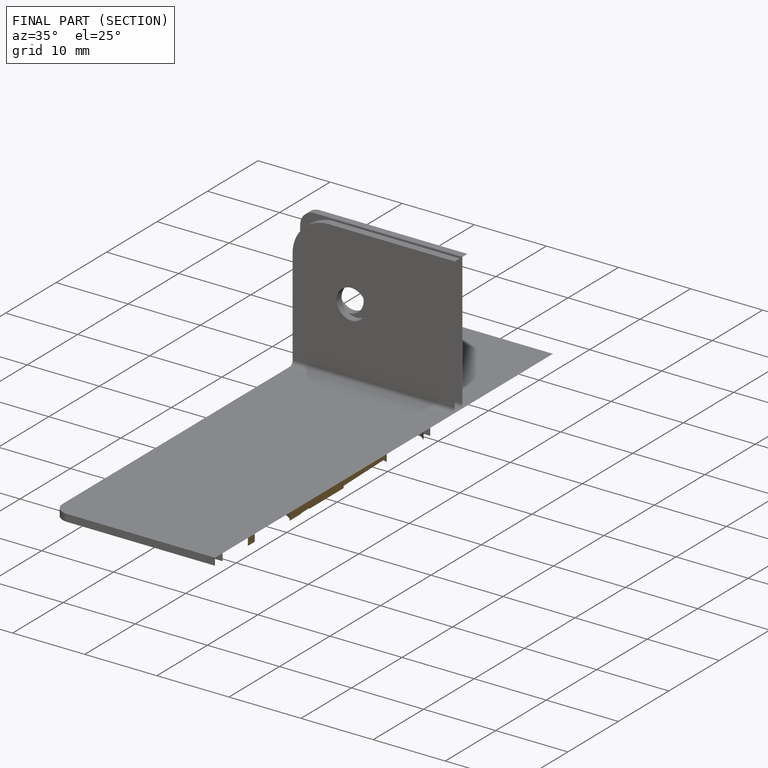
[diagram: finished part — half-section view (interior)]
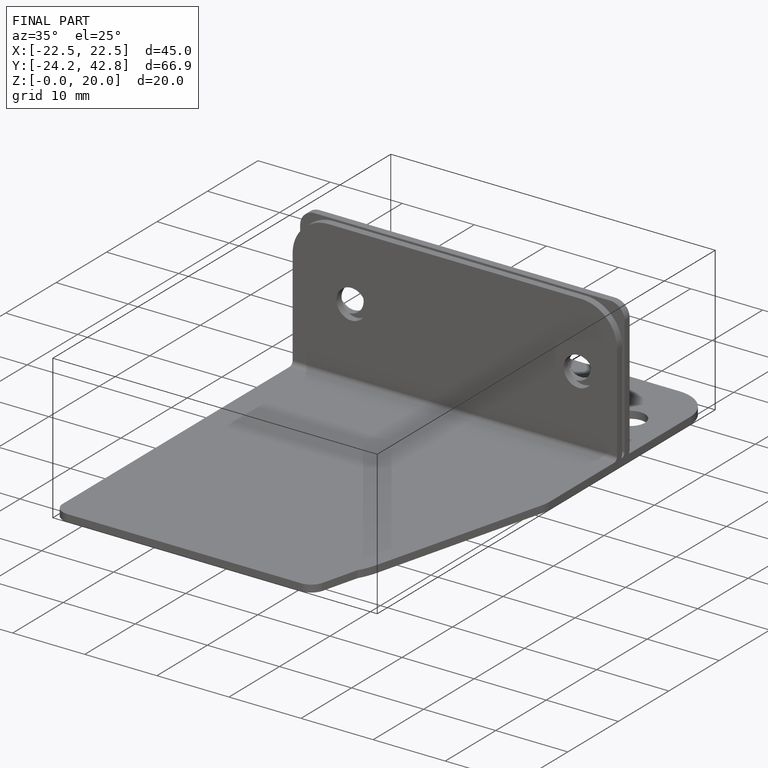
[diagram: finished part — iso view with bounding-box wireframe]
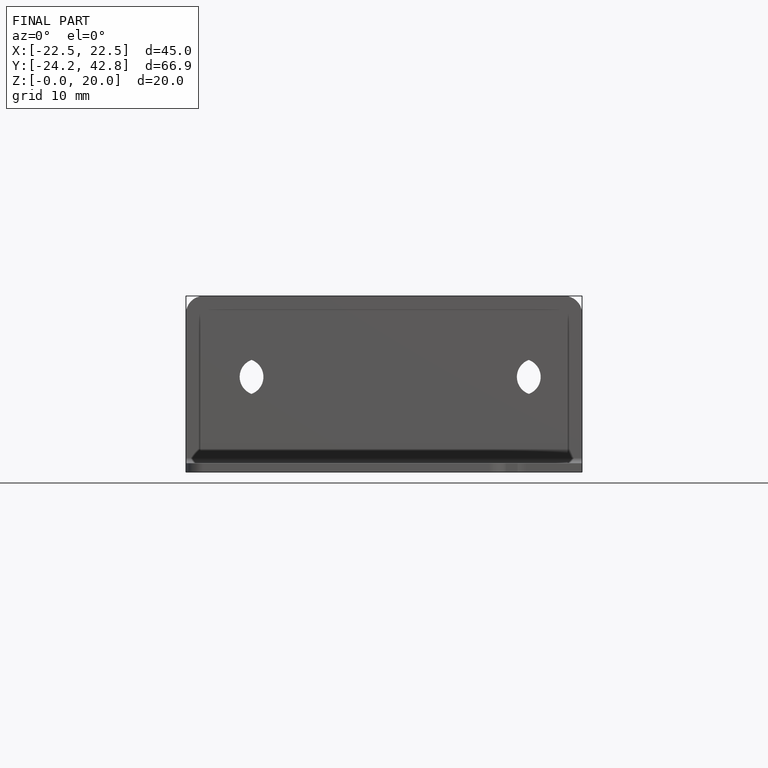
[diagram: finished part — front view with bounding-box wireframe]
